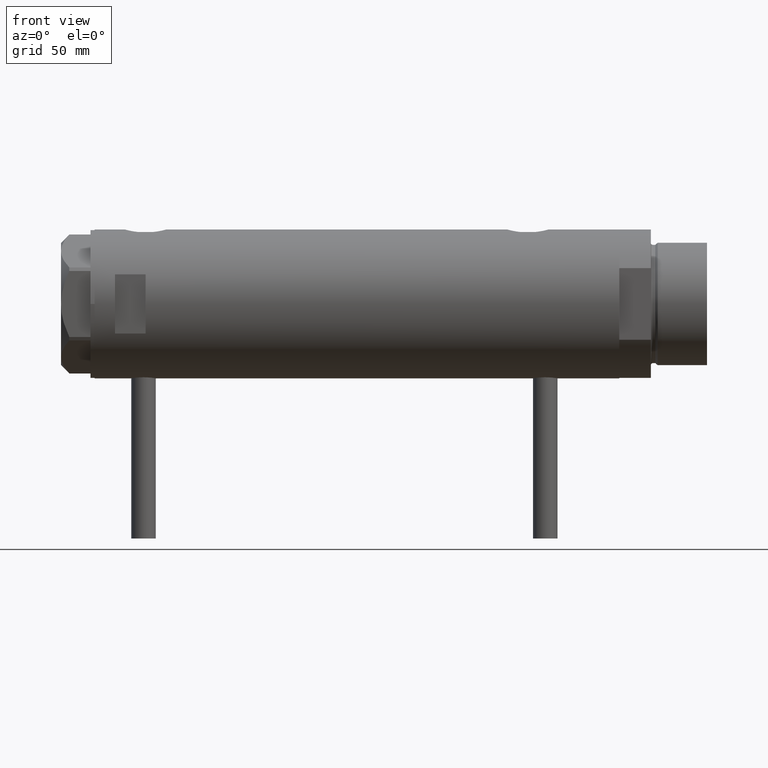
[diagram: clean part render]
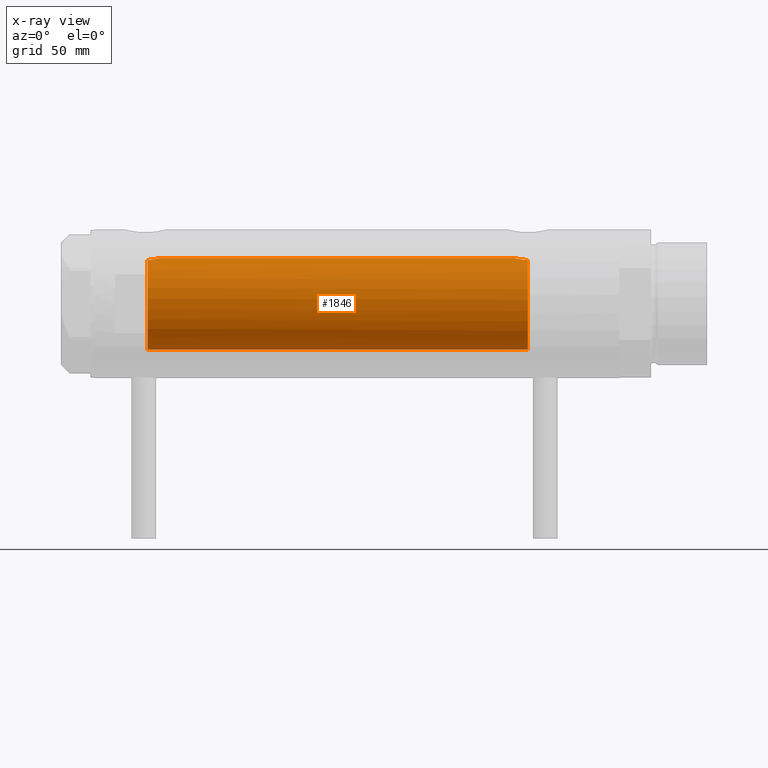
[diagram: x-ray — body ghosted, one internal face saturated and labeled with its STEP entity id]
A machine part, front view, then the same camera in x-ray: the body is ghosted and one INTERNAL B-rep face — a face not visible from any outside direction — is saturated and labeled: STEP entity #1846.
In plain terms, the highlighted cylindrical surface (partial cylindrical patch) has radius 22.5 mm, axis along (1, 0, -0).
Its self-contained STEP definition (entity closure, byte-faithful):
#32 = VERTEX_POINT ( 'NONE', #2330 ) ;
#54 = CARTESIAN_POINT ( 'NONE',  ( 22.50000000000000355, 8.058593785575293352E-16, -77.27000000000001023 ) ) ;
#147 = CARTESIAN_POINT ( 'NONE',  ( 21.71318796968428444, -5.899027407341884022, -80.92698536342957993 ) ) ;
#172 = CARTESIAN_POINT ( 'NONE',  ( 21.58054822171799714, -6.366927345060002352, -82.13402244069209246 ) ) ;
#249 = EDGE_CURVE ( 'NONE', #1079, #2088, #4346, .T. ) ;
#277 = DIRECTION ( 'NONE',  ( -0.000000000000000000, -0.000000000000000000, -1.000000000000000000 ) ) ;
#474 = CARTESIAN_POINT ( 'NONE',  ( 22.07839819281284477, -4.346355962099932135, -78.89115912649137385 ) ) ;
#497 = CARTESIAN_POINT ( 'NONE',  ( -22.50000000000000355, 3.061617244149333364E-16, 102.1500000000000199 ) ) ;
#505 = CARTESIAN_POINT ( 'NONE',  ( 22.48448975507857384, -0.8627579744204254553, -77.32320172378665291 ) ) ;
#516 = EDGE_CURVE ( 'NONE', #32, #3289, #637, .T. ) ;
#529 = CARTESIAN_POINT ( 'NONE',  ( 21.79602751566978824, -5.585535159907477620, -80.36520197735674742 ) ) ;
#541 = CARTESIAN_POINT ( 'NONE',  ( -22.46419909496996326, -1.286654073380656405, 102.4899905550355470 ) ) ;
#554 = CARTESIAN_POINT ( 'NONE',  ( 22.50000000000000355, 8.058593785575293352E-16, -77.27000000000001023 ) ) ;
#598 = ORIENTED_EDGE ( 'NONE', *, *, #4324, .F. ) ;
#637 = CIRCLE ( 'NONE', #3652, 22.50000000000000355 ) ;
#890 = VERTEX_POINT ( 'NONE', #497 ) ;
#903 = CARTESIAN_POINT ( 'NONE',  ( 22.40278435593408091, -2.127100118045536892, -77.60850395174203697 ) ) ;
#927 = CARTESIAN_POINT ( 'NONE',  ( 21.94965745907476773, -4.947937303812818044, -79.50715039555711883 ) ) ;
#947 = CARTESIAN_POINT ( 'NONE',  ( 21.51635656889892800, -6.580000000000002736, -83.85000000000000853 ) ) ;
#948 = CARTESIAN_POINT ( 'NONE',  ( 21.88647530142791808, -5.220320393727287289, -79.83868086085048787 ) ) ;
#991 = B_SPLINE_CURVE_WITH_KNOTS ( 'NONE', 3,
 ( #3814, #1762, #2147, #4776, #4005, #3250, #1382, #2923, #1434, #4708, #1031, #2829, #1078, #1783, #4755, #4390, #1362, #4365, #2869, #2543, #4689, #2103 ),
 .UNSPECIFIED., .F., .F.,
 ( 4, 2, 2, 2, 2, 2, 2, 2, 2, 2, 4 ),
 ( 0.000000000000000000, 0.001167753031984884466, 0.001751629547977323013, 0.002335506063969761126, 0.003503259095954651663, 0.004087135611947107991, 0.004671012127939563885, 0.005838765159924475673, 0.007006518191909386593, 0.008174271223894297514, 0.009342024255879211037 ),
 .UNSPECIFIED. ) ;
#1007 = CARTESIAN_POINT ( 'NONE',  ( 0.000000000000000000, 0.000000000000000000, 128.6500000000000057 ) ) ;
#1019 = ORIENTED_EDGE ( 'NONE', *, *, #1269, .F. ) ;
#1031 = CARTESIAN_POINT ( 'NONE',  ( 22.19872433573119963, -3.673198495424855992, 98.18723143248277552 ) ) ;
#1078 = CARTESIAN_POINT ( 'NONE',  ( 22.11568811446340277, -4.143519122923664533, 98.53480504416090469 ) ) ;
#1079 = VERTEX_POINT ( 'NONE', #947 ) ;
#1176 = CARTESIAN_POINT ( 'NONE',  ( -22.50000000000000355, 0.000000000000000000, -83.85000000000000853 ) ) ;
#1227 = CARTESIAN_POINT ( 'NONE',  ( 21.76737372098157763, -5.695831585513579043, -80.54847891606890187 ) ) ;
#1237 = CARTESIAN_POINT ( 'NONE',  ( 0.000000000000000000, 0.000000000000000000, -83.85000000000000853 ) ) ;
#1261 = CARTESIAN_POINT ( 'NONE',  ( -22.49055119298212446, -0.6642057183733610648, 102.2361530536189491 ) ) ;
#1269 = EDGE_CURVE ( 'NONE', #890, #2088, #4701, .T. ) ;
#1362 = CARTESIAN_POINT ( 'NONE',  ( 21.80246547822149239, -5.562416037700062432, 100.1135862820582361 ) ) ;
#1377 = LINE ( 'NONE', #3268, #2662 ) ;
#1382 = CARTESIAN_POINT ( 'NONE',  ( 22.40145249794127125, -2.111617392236895263, 97.41495543481978814 ) ) ;
#1419 = ORIENTED_EDGE ( 'NONE', *, *, #516, .T. ) ;
#1434 = CARTESIAN_POINT ( 'NONE',  ( 22.30010606974974863, -3.011418659624944372, 97.78678901685799474 ) ) ;
#1554 = CARTESIAN_POINT ( 'NONE',  ( 22.47508397315214523, -1.079737406574094560, -77.35558251353131709 ) ) ;
#1604 = CARTESIAN_POINT ( 'NONE',  ( 22.25875518649490559, -3.305696985817205835, -78.14458010501985541 ) ) ;
#1616 = CARTESIAN_POINT ( 'NONE',  ( -22.49403986544133716, -0.5345788548553158659, 102.2041278093014682 ) ) ;
#1674 = CARTESIAN_POINT ( 'NONE',  ( -22.44994432064365242, -1.499999999999989786, 102.6500000000000199 ) ) ;
#1698 = CARTESIAN_POINT ( 'NONE',  ( -22.47718698759301859, -1.044180983668922424, 102.3628639435232373 ) ) ;
#1762 = CARTESIAN_POINT ( 'NONE',  ( 22.50000000000000355, -0.3950131823107573270, 97.07000000000002160 ) ) ;
#1783 = CARTESIAN_POINT ( 'NONE',  ( 22.03004750576872439, -4.584392313773037131, 98.91396497621451545 ) ) ;
#1846 = ADVANCED_FACE ( 'NONE', ( #3543 ), #3244, .F. ) ;
#1934 = AXIS2_PLACEMENT_3D ( 'NONE', #1237, #3787, #3522 ) ;
#2088 = VERTEX_POINT ( 'NONE', #1176 ) ;
#2103 = CARTESIAN_POINT ( 'NONE',  ( 21.53958216864941733, -6.503568251352485952, 102.6500000000000199 ) ) ;
#2118 = DIRECTION ( 'NONE',  ( -0.000000000000000000, -0.000000000000000000, -1.000000000000000000 ) ) ;
#2147 = CARTESIAN_POINT ( 'NONE',  ( 22.48961206562542259, -0.7836756559690466473, 97.10527653274377258 ) ) ;
#2305 = CARTESIAN_POINT ( 'NONE',  ( 21.98210460142358968, -4.802207463187402325, -79.34652004334175501 ) ) ;
#2330 = CARTESIAN_POINT ( 'NONE',  ( -22.44994432064365242, -1.499999999999989786, 102.6500000000000199 ) ) ;
#2361 = CARTESIAN_POINT ( 'NONE',  ( 22.43844456282249666, -1.716722304487073636, -77.48314599255654400 ) ) ;
#2387 = CARTESIAN_POINT ( 'NONE',  ( 22.31324851815826094, -2.920315458573307321, -77.93792883542266736 ) ) ;
#2409 = CARTESIAN_POINT ( 'NONE',  ( 22.49690699366424695, -0.4310528819996864991, -77.28055249859414744 ) ) ;
#2513 = DIRECTION ( 'NONE',  ( -0.000000000000000000, -0.000000000000000000, -1.000000000000000000 ) ) ;
#2543 = CARTESIAN_POINT ( 'NONE',  ( 21.58601844322714669, -6.349099877921651647, 101.8790481141031847 ) ) ;
#2567 = EDGE_CURVE ( 'NONE', #32, #890, #3593, .T. ) ;
#2662 = VECTOR ( 'NONE', #277, 1000.000000000000000 ) ;
#2708 = CARTESIAN_POINT ( 'NONE',  ( 22.14149984669489157, -4.016690124115201321, -78.62069324031263307 ) ) ;
#2733 = CARTESIAN_POINT ( 'NONE',  ( 21.53958216864941733, -6.503568251352485952, 102.6500000000000199 ) ) ;
#2752 = CARTESIAN_POINT ( 'NONE',  ( -22.49878002430316570, -0.2692609109014494906, 102.1609110326966459 ) ) ;
#2829 = CARTESIAN_POINT ( 'NONE',  ( 22.14407575385478921, -3.989443360685411832, 98.41372562971264415 ) ) ;
#2831 = VERTEX_POINT ( 'NONE', #54 ) ;
#2869 = CARTESIAN_POINT ( 'NONE',  ( 21.65869182728109621, -6.096583454856811635, 101.1442047130796027 ) ) ;
#2923 = CARTESIAN_POINT ( 'NONE',  ( 22.34502592404423638, -2.661921217589550803, 97.61975867852119393 ) ) ;
#3053 = CARTESIAN_POINT ( 'NONE',  ( 0.000000000000000000, 0.000000000000000000, 102.6500000000000199 ) ) ;
#3122 = AXIS2_PLACEMENT_3D ( 'NONE', #1007, #2513, #3225 ) ;
#3181 = CARTESIAN_POINT ( 'NONE',  ( -22.50000000000001066, -0.1337055225816295712, 102.1500000000000341 ) ) ;
#3225 = DIRECTION ( 'NONE',  ( -1.000000000000000000, 0.000000000000000000, 0.000000000000000000 ) ) ;
#3240 = VERTEX_POINT ( 'NONE', #4034 ) ;
#3244 = CYLINDRICAL_SURFACE ( 'NONE', #3122, 22.50000000000000355 ) ;
#3250 = CARTESIAN_POINT ( 'NONE',  ( 22.41838729966076826, -1.923945741267791609, 97.35453118595340527 ) ) ;
#3268 = CARTESIAN_POINT ( 'NONE',  ( 22.50000000000000355, 2.755455298081545172E-15, 128.6500000000000057 ) ) ;
#3289 = VERTEX_POINT ( 'NONE', #2733 ) ;
#3317 = EDGE_CURVE ( 'NONE', #1079, #2831, #3889, .T. ) ;
#3335 = DIRECTION ( 'NONE',  ( 0.000000000000000000, 0.000000000000000000, 1.000000000000000000 ) ) ;
#3455 = CARTESIAN_POINT ( 'NONE',  ( 21.51635656889893511, -6.580000000000002736, -83.41825681860747466 ) ) ;
#3522 = DIRECTION ( 'NONE',  ( -1.000000000000000000, 0.000000000000000000, 0.000000000000000000 ) ) ;
#3543 = FACE_OUTER_BOUND ( 'NONE', #4567, .T. ) ;
#3593 = B_SPLINE_CURVE_WITH_KNOTS ( 'NONE', 3,
 ( #1674, #541, #1698, #1261, #1616, #2752, #3181, #4661 ),
 .UNSPECIFIED., .F., .F.,
 ( 4, 2, 2, 4 ),
 ( 0.006220300178549098037, 0.007021237910897099553, 0.007421706777071099444, 0.007822175643245100202 ),
 .UNSPECIFIED. ) ;
#3652 = AXIS2_PLACEMENT_3D ( 'NONE', #3053, #3335, #4529 ) ;
#3768 = ORIENTED_EDGE ( 'NONE', *, *, #2567, .F. ) ;
#3787 = DIRECTION ( 'NONE',  ( 0.000000000000000000, 0.000000000000000000, -1.000000000000000000 ) ) ;
#3814 = CARTESIAN_POINT ( 'NONE',  ( 22.50000000000000355, 0.000000000000000000, 97.07000000000002160 ) ) ;
#3878 = CARTESIAN_POINT ( 'NONE',  ( 21.61760927586798431, -6.241696587716365485, -81.72279459237282140 ) ) ;
#3889 = B_SPLINE_CURVE_WITH_KNOTS ( 'NONE', 3,
 ( #4231, #3455, #4543, #172, #3878, #4174, #147, #1227, #529, #4201, #948, #927, #2305, #474, #2708, #1604, #2387, #903, #2361, #1554, #505, #2409, #3903, #554 ),
 .UNSPECIFIED., .F., .F.,
 ( 4, 2, 2, 2, 2, 2, 2, 2, 2, 2, 2, 4 ),
 ( 0.01034583194474684824, 0.01163831905076679121, 0.01293080615678673592, 0.01357704970979672736, 0.01422329326280671880, 0.01486953681581670850, 0.01551578036882670167, 0.01680826747484668107, 0.01810075458086666048, 0.01939324168688664335, 0.02003948523989663652, 0.02068572879290662969 ),
 .UNSPECIFIED. ) ;
#3903 = CARTESIAN_POINT ( 'NONE',  ( 22.50000000000000711, -0.2154191524768910848, -77.27000000000001023 ) ) ;
#3934 = CARTESIAN_POINT ( 'NONE',  ( -22.50000000000000355, 0.000000000000000000, 128.6500000000000057 ) ) ;
#4005 = CARTESIAN_POINT ( 'NONE',  ( 22.44752031034920492, -1.547413406105163203, 97.25156217857971797 ) ) ;
#4034 = CARTESIAN_POINT ( 'NONE',  ( 22.50000000000000355, 0.000000000000000000, 97.07000000000002160 ) ) ;
#4174 = CARTESIAN_POINT ( 'NONE',  ( 21.68753676189998458, -5.992345198295746300, -81.12327232579067982 ) ) ;
#4201 = CARTESIAN_POINT ( 'NONE',  ( 21.85557760450272013, -5.347779544816336994, -80.01030284772026846 ) ) ;
#4231 = CARTESIAN_POINT ( 'NONE',  ( 21.51635656889892800, -6.580000000000002736, -83.85000000000000853 ) ) ;
#4240 = ORIENTED_EDGE ( 'NONE', *, *, #3317, .F. ) ;
#4324 = EDGE_CURVE ( 'NONE', #3240, #3289, #991, .T. ) ;
#4346 = CIRCLE ( 'NONE', #1934, 22.50000000000000355 ) ;
#4365 = CARTESIAN_POINT ( 'NONE',  ( 21.70285280737213540, -5.939204755440065320, 100.7912343513558824 ) ) ;
#4390 = CARTESIAN_POINT ( 'NONE',  ( 21.85824266975972918, -5.341352339310155628, 99.78795740361617561 ) ) ;
#4529 = DIRECTION ( 'NONE',  ( 1.000000000000000000, 0.000000000000000000, 0.000000000000000000 ) ) ;
#4543 = CARTESIAN_POINT ( 'NONE',  ( 21.52981735982749711, -6.536420260328984710, -82.97962480407471730 ) ) ;
#4567 = EDGE_LOOP ( 'NONE', ( #598, #4650, #4240, #4589, #1019, #3768, #1419 ) ) ;
#4584 = VECTOR ( 'NONE', #2118, 1000.000000000000000 ) ;
#4589 = ORIENTED_EDGE ( 'NONE', *, *, #249, .T. ) ;
#4650 = ORIENTED_EDGE ( 'NONE', *, *, #4768, .T. ) ;
#4661 = CARTESIAN_POINT ( 'NONE',  ( -22.50000000000000355, 3.061617244149333364E-16, 102.1500000000000199 ) ) ;
#4689 = CARTESIAN_POINT ( 'NONE',  ( 21.55747828655794507, -6.444296957919021018, 102.2645250978095390 ) ) ;
#4701 = LINE ( 'NONE', #3934, #4584 ) ;
#4708 = CARTESIAN_POINT ( 'NONE',  ( 22.22503367403958663, -3.510871893734214932, 98.08155767831968319 ) ) ;
#4755 = CARTESIAN_POINT ( 'NONE',  ( 21.97180182460413889, -4.853116730831949610, 99.18987939335090687 ) ) ;
#4768 = EDGE_CURVE ( 'NONE', #3240, #2831, #1377, .T. ) ;
#4776 = CARTESIAN_POINT ( 'NONE',  ( 22.45982135096091525, -1.357617207441327301, 97.20864426403785785 ) ) ;